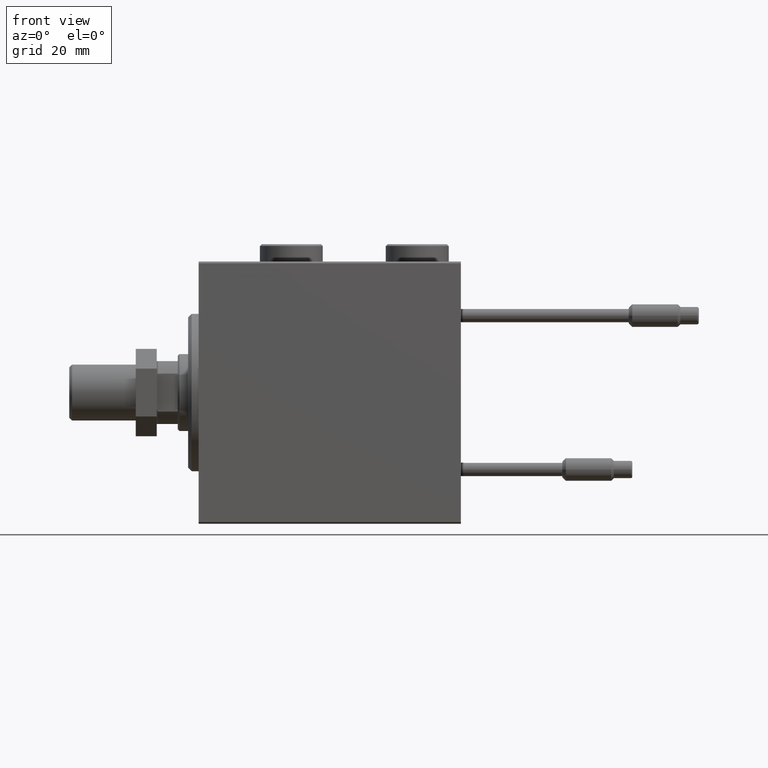
[diagram: clean part render]
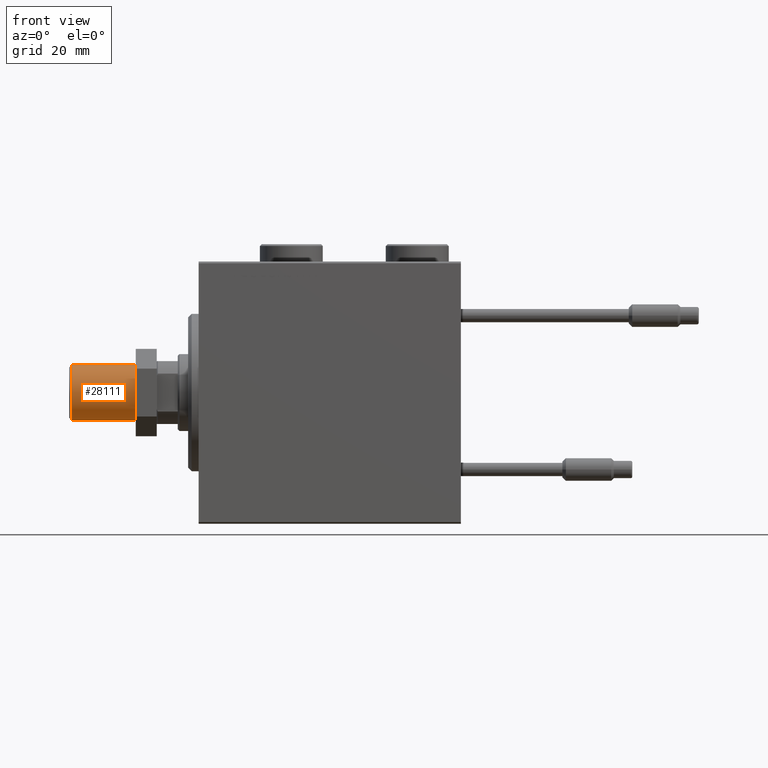
[diagram: same view with one face highlighted and labeled with its STEP entity id]
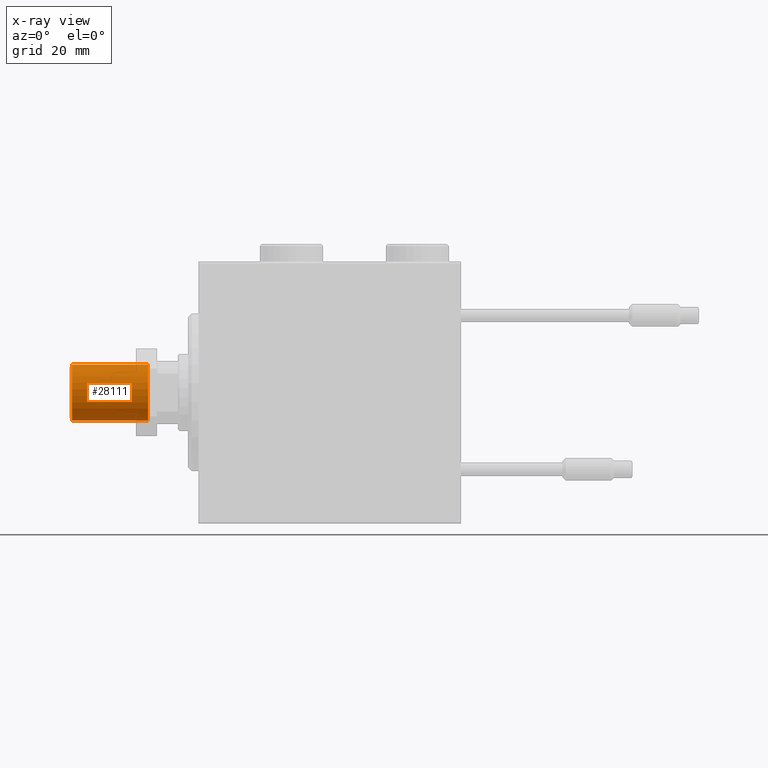
[diagram: x-ray of the same camera — body ghosted, the highlighted face saturated]
A machine part, front view. The second image highlights one B-rep face of the part: STEP entity #28111.
The next image is the same camera in x-ray: the body ghosted, the highlighted face saturated — about 0% of this face is hidden behind the body in this view.
In plain terms, the highlighted cylindrical surface (edge-blend (fillet) strip) has radius 8 mm, axis along (-1, -0, 0).
Its self-contained STEP definition (entity closure, byte-faithful):
#392 = DIRECTION ( 'NONE',  ( 0.000000000000000000, 0.000000000000000000, 1.000000000000000000 ) ) ;
#411 = CARTESIAN_POINT ( 'NONE',  ( -8.000000000000000000, 0.000000000000000000, 22.50000000000000000 ) ) ;
#539 = VERTEX_POINT ( 'NONE', #26679 ) ;
#959 = EDGE_CURVE ( 'NONE', #539, #3861, #49713, .T. ) ;
#2202 = DIRECTION ( 'NONE',  ( 1.000000000000000000, 0.000000000000000000, 0.000000000000000000 ) ) ;
#3861 = VERTEX_POINT ( 'NONE', #42923 ) ;
#4142 = CARTESIAN_POINT ( 'NONE',  ( -8.000000000000000000, 0.000000000000000000, 0.8000000000000160316 ) ) ;
#6046 = LINE ( 'NONE', #6321, #40190 ) ;
#6321 = CARTESIAN_POINT ( 'NONE',  ( -8.000000000000000000, 0.000000000000000000, 22.50000000000000000 ) ) ;
#9385 = DIRECTION ( 'NONE',  ( -1.000000000000000000, 0.000000000000000000, 0.000000000000000000 ) ) ;
#12815 = DIRECTION ( 'NONE',  ( -0.000000000000000000, -0.000000000000000000, -1.000000000000000000 ) ) ;
#16817 = ORIENTED_EDGE ( 'NONE', *, *, #19469, .T. ) ;
#17084 = CARTESIAN_POINT ( 'NONE',  ( 0.000000000000000000, 0.000000000000000000, 22.50000000000000000 ) ) ;
#17177 = VERTEX_POINT ( 'NONE', #4142 ) ;
#17466 = ORIENTED_EDGE ( 'NONE', *, *, #47198, .F. ) ;
#17741 = FACE_OUTER_BOUND ( 'NONE', #30270, .T. ) ;
#18108 = ORIENTED_EDGE ( 'NONE', *, *, #959, .F. ) ;
#19469 = EDGE_CURVE ( 'NONE', #34678, #17177, #6046, .T. ) ;
#20327 = DIRECTION ( 'NONE',  ( 1.000000000000000000, 0.000000000000000000, 0.000000000000000000 ) ) ;
#20595 = AXIS2_PLACEMENT_3D ( 'NONE', #46558, #50347, #9385 ) ;
#21886 = CARTESIAN_POINT ( 'NONE',  ( 0.000000000000000000, 0.000000000000000000, 0.8000000000000160316 ) ) ;
#22397 = AXIS2_PLACEMENT_3D ( 'NONE', #17084, #392, #20327 ) ;
#22420 = DIRECTION ( 'NONE',  ( -0.000000000000000000, -0.000000000000000000, 1.000000000000000000 ) ) ;
#22435 = CIRCLE ( 'NONE', #22397, 8.000000000000000000 ) ;
#24119 = VECTOR ( 'NONE', #12815, 1000.000000000000000 ) ;
#26085 = CIRCLE ( 'NONE', #26990, 8.000000000000000000 ) ;
#26679 = CARTESIAN_POINT ( 'NONE',  ( 8.000000000000000000, 9.797174393178823685E-16, 22.50000000000000000 ) ) ;
#26990 = AXIS2_PLACEMENT_3D ( 'NONE', #21886, #22420, #2202 ) ;
#28111 = ADVANCED_FACE ( 'NONE', ( #17741 ), #38224, .T. ) ;
#30270 = EDGE_LOOP ( 'NONE', ( #18108, #17466, #16817, #46181 ) ) ;
#30852 = DIRECTION ( 'NONE',  ( -0.000000000000000000, -0.000000000000000000, -1.000000000000000000 ) ) ;
#34678 = VERTEX_POINT ( 'NONE', #411 ) ;
#38224 = CYLINDRICAL_SURFACE ( 'NONE', #20595, 8.000000000000000000 ) ;
#40190 = VECTOR ( 'NONE', #30852, 1000.000000000000000 ) ;
#42162 = CARTESIAN_POINT ( 'NONE',  ( 8.000000000000000000, 9.797174393178823685E-16, 22.50000000000000000 ) ) ;
#42923 = CARTESIAN_POINT ( 'NONE',  ( 8.000000000000000000, 9.797174393178823685E-16, 0.8000000000000160316 ) ) ;
#46181 = ORIENTED_EDGE ( 'NONE', *, *, #53268, .T. ) ;
#46558 = CARTESIAN_POINT ( 'NONE',  ( 0.000000000000000000, 0.000000000000000000, 22.50000000000000000 ) ) ;
#47198 = EDGE_CURVE ( 'NONE', #34678, #539, #22435, .T. ) ;
#49713 = LINE ( 'NONE', #42162, #24119 ) ;
#50347 = DIRECTION ( 'NONE',  ( -0.000000000000000000, -0.000000000000000000, -1.000000000000000000 ) ) ;
#53268 = EDGE_CURVE ( 'NONE', #17177, #3861, #26085, .T. ) ;